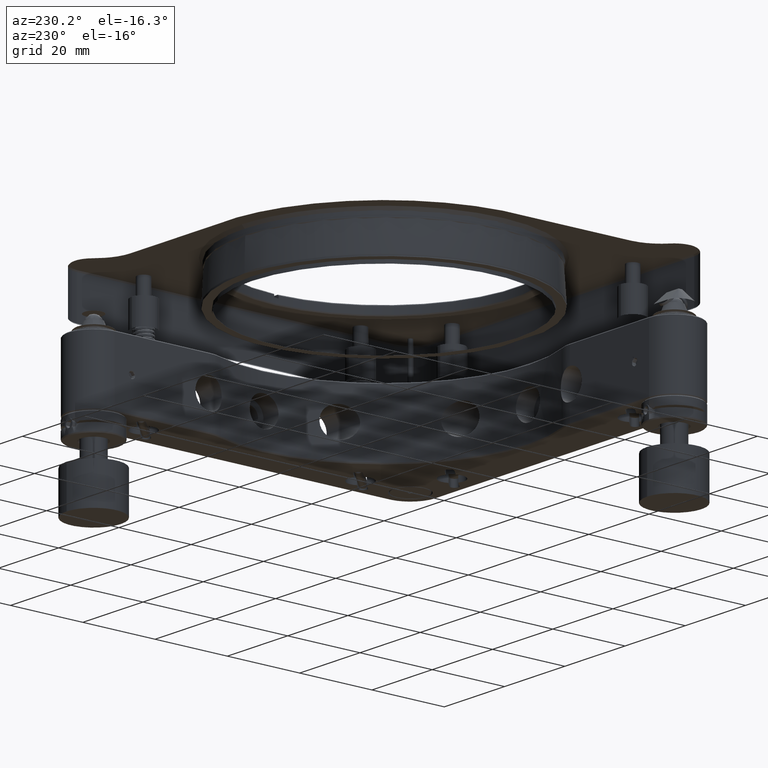
[diagram: clean part render]
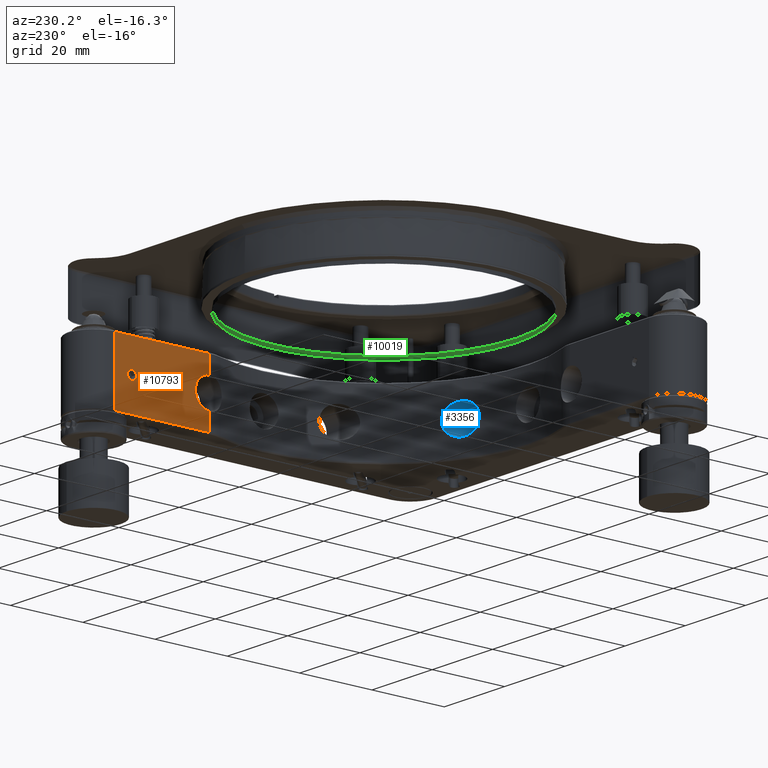
[diagram: same view with three faces highlighted in distinct colors, each labeled with its STEP entity id]
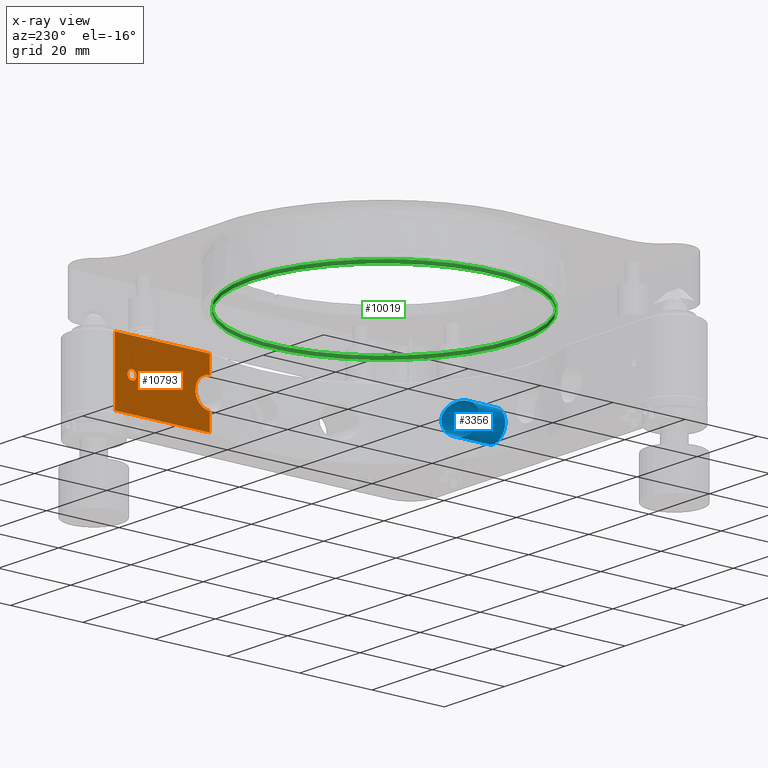
[diagram: x-ray of the same camera — body ghosted, the three highlighted faces saturated]
A machine part, auxiliary view with three faces highlighted in distinct colors.
The next image is the same camera in x-ray (body ghosted, the three faces saturated) — at least one of them is partly hidden behind the body in this view.
Their STEP definitions:

[orange] entity #10793 — the highlighted planar face has unit normal (1, -0, 0).
#72 = CARTESIAN_POINT ( 'NONE',  ( 36.80000000000001137, 37.87357851992529589, 0.4230013043515545301 ) ) ;
#140 = B_SPLINE_CURVE_WITH_KNOTS ( 'NONE', 3,
 ( #1087, #10561, #5021, #7658, #10229, #15431, #3738, #2447, #8940, #12865, #1168, #6376, #11596, #16188, #4246, #12261, #550, #15855, #10813, #296, #6871, #12007, #7045, #5514, #1749, #2952, #1497, #4331, #15940, #12088, #10977, #379, #16022, #5686 ),
 .UNSPECIFIED., .F., .F.,
 ( 4, 1, 1, 2, 2, 2, 1, 1, 2, 2, 2, 1, 1, 2, 2, 2, 1, 1, 2, 2, 4 ),
 ( 0.000000000000000000, 0.06249999999998979983, 0.09374999999998470668, 0.1093749999999821532, 0.1249999999999795997, 0.2499999999999779621, 0.3124999999999788503, 0.3437499999999792388, 0.3593749999999794054, 0.3749999999999795719, 0.4999999999999811262, 0.5624999999999819034, 0.5937499999999822364, 0.6093749999999824585, 0.6249999999999826805, 0.7499999999999824585, 0.8124999999999842348, 0.8437499999999850120, 0.8593749999999854561, 0.8749999999999859002, 1.000000000000000000 ),
 .UNSPECIFIED. ) ;
#149 = B_SPLINE_CURVE_WITH_KNOTS ( 'NONE', 3,
 ( #1447, #6656, #1201, #13149, #6406, #7856, #9049, #7604, #10422, #5137, #12983, #164, #1282, #5216, #11787, #13067, #1369, #2733, #5385, #14263, #16916, #72, #2558, #6569, #7772, #10593, #10261, #10341, #15628, #4108, #3937, #2397, #11873, #15717 ),
 .UNSPECIFIED., .F., .F.,
 ( 4, 1, 1, 2, 2, 2, 1, 1, 2, 2, 2, 1, 1, 2, 2, 2, 1, 1, 2, 2, 4 ),
 ( 0.000000000000000000, 0.06250000000001328104, 0.09375000000001994238, 0.1093750000000205946, 0.1250000000000212330, 0.2500000000000167644, 0.3125000000000145439, 0.3437500000000119904, 0.3593750000000118794, 0.3750000000000117129, 0.5000000000000069944, 0.5625000000000046629, 0.5937500000000033307, 0.6093750000000019984, 0.6250000000000006661, 0.7499999999999897859, 0.8124999999999862332, 0.8437499999999822364, 0.8593749999999824585, 0.8749999999999826805, 1.000000000000000000 ),
 .UNSPECIFIED. ) ;
#164 = CARTESIAN_POINT ( 'NONE',  ( 36.80000000000000426, 37.94988067785406116, -0.5965246171928245689 ) ) ;
#296 = CARTESIAN_POINT ( 'NONE',  ( 36.80000000000000426, 40.25707606986694032, -0.3293503164293616892 ) ) ;
#379 = CARTESIAN_POINT ( 'NONE',  ( 36.79999999999999716, 39.36250397191175665, -1.220745125442666446 ) ) ;
#456 = DIRECTION ( 'NONE',  ( 0.000000000000000000, 0.000000000000000000, -1.000000000000000000 ) ) ;
#550 = CARTESIAN_POINT ( 'NONE',  ( 36.80000000000001137, 40.29993269809825307, 0.1586042252453790380 ) ) ;
#568 = EDGE_CURVE ( 'NONE', #12319, #14961, #149, .T. ) ;
#636 = LINE ( 'NONE', #3042, #9140 ) ;
#715 = EDGE_CURVE ( 'NONE', #15132, #8281, #12209, .T. ) ;
#992 = VERTEX_POINT ( 'NONE', #6492 ) ;
#1087 = CARTESIAN_POINT ( 'NONE',  ( 36.80000000000000426, 39.05000000000001137, 1.249999999999987121 ) ) ;
#1151 = FACE_OUTER_BOUND ( 'NONE', #9335, .T. ) ;
#1168 = CARTESIAN_POINT ( 'NONE',  ( 36.80000000000001137, 40.07528999022573402, 0.7243921280173486466 ) ) ;
#1201 = CARTESIAN_POINT ( 'NONE',  ( 36.80000000000000426, 38.85355757384363784, -1.239029422040992756 ) ) ;
#1282 = CARTESIAN_POINT ( 'NONE',  ( 36.80000000000001137, 37.92189737487561274, -0.5389796670274261681 ) ) ;
#1294 = EDGE_CURVE ( 'NONE', #7166, #992, #15105, .T. ) ;
#1369 = CARTESIAN_POINT ( 'NONE',  ( 36.80000000000001137, 37.80006730190072517, -0.1586042252482678105 ) ) ;
#1439 = DIRECTION ( 'NONE',  ( 0.000000000000000000, 0.000000000000000000, 1.000000000000000000 ) ) ;
#1447 = CARTESIAN_POINT ( 'NONE',  ( 36.80000000000000426, 39.05000000000001137, -1.249999999999987121 ) ) ;
#1497 = CARTESIAN_POINT ( 'NONE',  ( 36.80000000000000426, 39.77439212801638746, -1.025289990225950909 ) ) ;
#1617 = CARTESIAN_POINT ( 'NONE',  ( 36.80000000000000426, 50.80000000000000426, -8.750000000000012434 ) ) ;
#1749 = CARTESIAN_POINT ( 'NONE',  ( 36.80000000000000426, 40.05562143336939585, -0.7620405893264134978 ) ) ;
#2397 = CARTESIAN_POINT ( 'NONE',  ( 36.79999999999999716, 38.73749602808892689, 1.220745125442666446 ) ) ;
#2447 = CARTESIAN_POINT ( 'NONE',  ( 36.80000000000001137, 39.67028855197811055, 1.098901979468707157 ) ) ;
#2558 = CARTESIAN_POINT ( 'NONE',  ( 36.80000000000000426, 37.87984794906397923, 0.4400971163233313721 ) ) ;
#2733 = CARTESIAN_POINT ( 'NONE',  ( 36.80000000000001137, 37.79996634904967578, 0.07930211262413383588 ) ) ;
#2952 = CARTESIAN_POINT ( 'NONE',  ( 36.79999999999999716, 39.87301449804008513, -0.9448049200615576959 ) ) ;
#2988 = VECTOR ( 'NONE', #6459, 1000.000000000000000 ) ;
#3030 = DIRECTION ( 'NONE',  ( 1.000000000000000000, -0.000000000000000000, 0.000000000000000000 ) ) ;
#3042 = CARTESIAN_POINT ( 'NONE',  ( 36.80000000000001137, 17.59999999999999076, -9.000000000000001776 ) ) ;
#3101 = VECTOR ( 'NONE', #14845, 1000.000000000000000 ) ;
#3336 = ORIENTED_EDGE ( 'NONE', *, *, #568, .F. ) ;
#3420 = DIRECTION ( 'NONE',  ( -0.000000000000000000, -1.000000000000000000, 0.000000000000000000 ) ) ;
#3738 = CARTESIAN_POINT ( 'NONE',  ( 36.80000000000001137, 39.49009711632412944, 1.170152050935440169 ) ) ;
#3937 = CARTESIAN_POINT ( 'NONE',  ( 36.80000000000000426, 38.57142981116751912, 1.154921657688695591 ) ) ;
#4108 = CARTESIAN_POINT ( 'NONE',  ( 36.80000000000001137, 38.54999354161282099, 1.145850069176516106 ) ) ;
#4246 = CARTESIAN_POINT ( 'NONE',  ( 36.80000000000000426, 40.20493010742312379, 0.4785488709730882362 ) ) ;
#4331 = CARTESIAN_POINT ( 'NONE',  ( 36.80000000000001137, 39.64652461719378351, -1.100119322145508560 ) ) ;
#4649 = DIRECTION ( 'NONE',  ( 0.000000000000000000, 0.000000000000000000, -1.000000000000000000 ) ) ;
#4838 = EDGE_CURVE ( 'NONE', #15402, #15132, #11136, .T. ) ;
#4882 = CARTESIAN_POINT ( 'NONE',  ( 36.80000000000000426, 17.59999999999999076, -3.998749804626435367 ) ) ;
#4905 = CARTESIAN_POINT ( 'NONE',  ( 36.80000000000000426, 39.05000000000001137, 1.249999999999987121 ) ) ;
#5021 = CARTESIAN_POINT ( 'NONE',  ( 36.80000000000000426, 39.24644242615450196, 1.239029422040991646 ) ) ;
#5137 = CARTESIAN_POINT ( 'NONE',  ( 36.80000000000001847, 38.10519507993814159, -0.8230144980393349075 ) ) ;
#5216 = CARTESIAN_POINT ( 'NONE',  ( 36.80000000000001137, 37.90414993082358563, -0.5000064583872859680 ) ) ;
#5385 = CARTESIAN_POINT ( 'NONE',  ( 36.79999999999999716, 37.81091168879590469, 0.1962934954612754468 ) ) ;
#5514 = CARTESIAN_POINT ( 'NONE',  ( 36.79999999999999716, 40.14890197946482431, -0.6202885519828190697 ) ) ;
#5538 = CARTESIAN_POINT ( 'NONE',  ( 36.80000000000000426, 17.50000000000001421, 2.143131898507868248E-15 ) ) ;
#5686 = CARTESIAN_POINT ( 'NONE',  ( 36.80000000000000426, 39.05000000000001137, -1.249999999999987121 ) ) ;
#5903 = EDGE_CURVE ( 'NONE', #14961, #12319, #140, .T. ) ;
#6329 = ORIENTED_EDGE ( 'NONE', *, *, #715, .F. ) ;
#6376 = CARTESIAN_POINT ( 'NONE',  ( 36.80000000000000426, 40.15011932214533630, 0.5965246171945138842 ) ) ;
#6406 = CARTESIAN_POINT ( 'NONE',  ( 36.80000000000001137, 38.66428919564076239, -1.189204713810555480 ) ) ;
#6450 = AXIS2_PLACEMENT_3D ( 'NONE', #13360, #3030, #456 ) ;
#6452 = ORIENTED_EDGE ( 'NONE', *, *, #16261, .F. ) ;
#6459 = DIRECTION ( 'NONE',  ( -0.000000000000000000, -0.000000000000000000, 1.000000000000000000 ) ) ;
#6492 = CARTESIAN_POINT ( 'NONE',  ( 36.80000000000000426, 17.59999999999998366, 8.749999999999996447 ) ) ;
#6569 = CARTESIAN_POINT ( 'NONE',  ( 36.79999999999999005, 37.95109802053590897, 0.6202885519843837070 ) ) ;
#6656 = CARTESIAN_POINT ( 'NONE',  ( 36.79999999999999716, 38.97061278412153484, -1.249999999999987121 ) ) ;
#6787 = EDGE_CURVE ( 'NONE', #992, #9417, #636, .T. ) ;
#6865 = EDGE_LOOP ( 'NONE', ( #3336, #9570 ) ) ;
#6871 = CARTESIAN_POINT ( 'NONE',  ( 36.80000000000000426, 40.23923310680036280, -0.3856389984871692600 ) ) ;
#7033 = CARTESIAN_POINT ( 'NONE',  ( 36.80000000000698179, 43.80000000000000426, 8.750000000005115908 ) ) ;
#7045 = CARTESIAN_POINT ( 'NONE',  ( 36.80000000000001137, 40.22015205093592272, -0.4400971163235249395 ) ) ;
#7166 = VERTEX_POINT ( 'NONE', #7033 ) ;
#7604 = CARTESIAN_POINT ( 'NONE',  ( 36.80000000000001137, 38.42971144801762762, -1.098901979466097245 ) ) ;
#7658 = CARTESIAN_POINT ( 'NONE',  ( 36.80000000000000426, 39.37946201445117822, 1.207031902993922712 ) ) ;
#7772 = CARTESIAN_POINT ( 'NONE',  ( 36.80000000000001847, 38.04437856662875106, 0.7620405893253864305 ) ) ;
#7856 = CARTESIAN_POINT ( 'NONE',  ( 36.79999999999999716, 38.62695880349794919, -1.176405706191727685 ) ) ;
#7996 = CARTESIAN_POINT ( 'NONE',  ( 36.80000000000000426, 43.80000000000000426, -9.000000000000001776 ) ) ;
#8152 = PLANE ( 'NONE',  #6450 ) ;
#8247 = DIRECTION ( 'NONE',  ( -0.000000000000000000, -0.000000000000000000, -1.000000000000000000 ) ) ;
#8281 = VERTEX_POINT ( 'NONE', #11173 ) ;
#8940 = CARTESIAN_POINT ( 'NONE',  ( 36.80000000000000426, 39.81204058932669199, 1.005621433368286466 ) ) ;
#9049 = CARTESIAN_POINT ( 'NONE',  ( 36.80000000000000426, 38.60990288367642620, -1.170152050935768351 ) ) ;
#9140 = VECTOR ( 'NONE', #8247, 1000.000000000000000 ) ;
#9335 = EDGE_LOOP ( 'NONE', ( #14271, #6452, #6329, #16707, #15851, #13110 ) ) ;
#9417 = VERTEX_POINT ( 'NONE', #13193 ) ;
#9570 = ORIENTED_EDGE ( 'NONE', *, *, #5903, .F. ) ;
#9659 = VECTOR ( 'NONE', #3420, 1000.000000000000000 ) ;
#9820 = CARTESIAN_POINT ( 'NONE',  ( 36.80000000000000426, 50.80000000000000426, 8.749999999999998224 ) ) ;
#10229 = CARTESIAN_POINT ( 'NONE',  ( 36.80000000000001847, 39.43571080435835796, 1.189204713810553926 ) ) ;
#10261 = CARTESIAN_POINT ( 'NONE',  ( 36.80000000000001137, 38.32560787198524110, 1.025289990226847747 ) ) ;
#10341 = CARTESIAN_POINT ( 'NONE',  ( 36.80000000000000426, 38.45347538280743294, 1.100119322146186018 ) ) ;
#10358 = CARTESIAN_POINT ( 'NONE',  ( 36.80000000000000426, 17.59999999999999076, -8.750000000000010658 ) ) ;
#10422 = CARTESIAN_POINT ( 'NONE',  ( 36.80000000000001137, 38.28795941067423314, -1.005621433370858631 ) ) ;
#10561 = CARTESIAN_POINT ( 'NONE',  ( 36.79999999999999716, 39.12938721587741497, 1.249999999999987121 ) ) ;
#10593 = CARTESIAN_POINT ( 'NONE',  ( 36.79999999999999716, 38.22698550196086131, 0.9448049200620709520 ) ) ;
#10793 = ADVANCED_FACE ( 'NONE', ( #1151, #11581 ), #8152, .F. ) ;
#10813 = CARTESIAN_POINT ( 'NONE',  ( 36.80000000000001137, 40.28908831120502043, -0.1962934954587493841 ) ) ;
#10977 = CARTESIAN_POINT ( 'NONE',  ( 36.80000000000001847, 39.52857018883242546, -1.154921657688695813 ) ) ;
#11136 = LINE ( 'NONE', #16344, #16743 ) ;
#11173 = CARTESIAN_POINT ( 'NONE',  ( 36.80000000000000426, 43.80000000000000426, -8.750000000000014211 ) ) ;
#11581 = FACE_BOUND ( 'NONE', #6865, .T. ) ;
#11596 = CARTESIAN_POINT ( 'NONE',  ( 36.79999999999999716, 40.17810262512401920, 0.5389796670285101898 ) ) ;
#11787 = CARTESIAN_POINT ( 'NONE',  ( 36.80000000000001137, 37.89506989257702685, -0.4785488709733837775 ) ) ;
#11845 = LINE ( 'NONE', #7996, #2988 ) ;
#11873 = CARTESIAN_POINT ( 'NONE',  ( 36.80000000000000426, 38.89086882373970866, 1.249999999999987121 ) ) ;
#11953 = DIRECTION ( 'NONE',  ( -1.000000000000000000, -0.000000000000000000, -0.000000000000000000 ) ) ;
#12007 = CARTESIAN_POINT ( 'NONE',  ( 36.80000000000001137, 40.22642148007494001, -0.4230013043508763504 ) ) ;
#12088 = CARTESIAN_POINT ( 'NONE',  ( 36.80000000000001847, 39.55000645838764939, -1.145850069176275854 ) ) ;
#12209 = LINE ( 'NONE', #1617, #3101 ) ;
#12261 = CARTESIAN_POINT ( 'NONE',  ( 36.80000000000000426, 40.27067752756732233, 0.3126745147863291829 ) ) ;
#12319 = VERTEX_POINT ( 'NONE', #16898 ) ;
#12865 = CARTESIAN_POINT ( 'NONE',  ( 36.79999999999999716, 39.99480492006144061, 0.8230144980406205457 ) ) ;
#12983 = CARTESIAN_POINT ( 'NONE',  ( 36.79999999999999716, 38.02471000977350002, -0.7243921280150995567 ) ) ;
#13067 = CARTESIAN_POINT ( 'NONE',  ( 36.79999999999999716, 37.82932247243164170, -0.3126745147839651295 ) ) ;
#13110 = ORIENTED_EDGE ( 'NONE', *, *, #6787, .F. ) ;
#13149 = CARTESIAN_POINT ( 'NONE',  ( 36.80000000000000426, 38.72053798554744475, -1.207031902993923600 ) ) ;
#13193 = CARTESIAN_POINT ( 'NONE',  ( 36.80000000000001137, 17.59999999999999076, 3.998749804626437587 ) ) ;
#13360 = CARTESIAN_POINT ( 'NONE',  ( 36.80000000000000426, 50.80000000000000426, -9.000000000000001776 ) ) ;
#14263 = CARTESIAN_POINT ( 'NONE',  ( 36.80000000000000426, 37.84292393013374323, 0.3293503164312571729 ) ) ;
#14271 = ORIENTED_EDGE ( 'NONE', *, *, #1294, .F. ) ;
#14444 = CIRCLE ( 'NONE', #16901, 3.999999999999994671 ) ;
#14845 = DIRECTION ( 'NONE',  ( 0.000000000000000000, 1.000000000000000000, 0.000000000000000000 ) ) ;
#14961 = VERTEX_POINT ( 'NONE', #4905 ) ;
#15105 = LINE ( 'NONE', #9820, #9659 ) ;
#15132 = VERTEX_POINT ( 'NONE', #10358 ) ;
#15402 = VERTEX_POINT ( 'NONE', #4882 ) ;
#15431 = CARTESIAN_POINT ( 'NONE',  ( 36.80000000000001847, 39.47304119650155485, 1.176405706191726352 ) ) ;
#15628 = CARTESIAN_POINT ( 'NONE',  ( 36.80000000000000426, 38.51102033297275540, 1.128102625124561387 ) ) ;
#15717 = CARTESIAN_POINT ( 'NONE',  ( 36.80000000000000426, 39.05000000000001137, 1.249999999999987121 ) ) ;
#15790 = EDGE_CURVE ( 'NONE', #9417, #15402, #14444, .T. ) ;
#15851 = ORIENTED_EDGE ( 'NONE', *, *, #15790, .F. ) ;
#15855 = CARTESIAN_POINT ( 'NONE',  ( 36.80000000000000426, 40.30003365095087986, -0.07930211262268954675 ) ) ;
#15940 = CARTESIAN_POINT ( 'NONE',  ( 36.80000000000001137, 39.58897966702806315, -1.128102625124129066 ) ) ;
#16022 = CARTESIAN_POINT ( 'NONE',  ( 36.80000000000000426, 39.20913117626098199, -1.249999999999987121 ) ) ;
#16188 = CARTESIAN_POINT ( 'NONE',  ( 36.80000000000000426, 40.19585006917622394, 0.5000064583878878199 ) ) ;
#16261 = EDGE_CURVE ( 'NONE', #8281, #7166, #11845, .T. ) ;
#16344 = CARTESIAN_POINT ( 'NONE',  ( 36.80000000000000426, 17.59999999999999076, -9.000000000000001776 ) ) ;
#16707 = ORIENTED_EDGE ( 'NONE', *, *, #4838, .F. ) ;
#16743 = VECTOR ( 'NONE', #4649, 1000.000000000000000 ) ;
#16898 = CARTESIAN_POINT ( 'NONE',  ( 36.80000000000000426, 39.05000000000001137, -1.249999999999987121 ) ) ;
#16901 = AXIS2_PLACEMENT_3D ( 'NONE', #5538, #11953, #1439 ) ;
#16916 = CARTESIAN_POINT ( 'NONE',  ( 36.80000000000001137, 37.86076689320008626, 0.3856389984883888400 ) ) ;

[blue] entity #3356 — the highlighted cylindrical surface (bore or boss wall) has radius 4 mm, axis along (0, 1, 0).
#594 = CARTESIAN_POINT ( 'NONE',  ( 13.49563487544978990, -37.65458627938710379, -0.2027371142948291849 ) ) ;
#766 = CARTESIAN_POINT ( 'NONE',  ( 13.98237661210883331, -37.47676783253960764, 1.923929985853091607 ) ) ;
#936 = CARTESIAN_POINT ( 'NONE',  ( 18.85775354456502839, -35.27680065668296550, 3.770728618600924786 ) ) ;
#1276 = CARTESIAN_POINT ( 'NONE',  ( 20.41183855940359848, -34.40064097931813336, -2.754414858204996985 ) ) ;
#1963 = CARTESIAN_POINT ( 'NONE',  ( 17.24905818533173374, -36.09082805755732437, -3.999999999999992450 ) ) ;
#2052 = CARTESIAN_POINT ( 'NONE',  ( 14.35184466892037847, -37.33699323100682221, -2.482276187145171065 ) ) ;
#2137 = CARTESIAN_POINT ( 'NONE',  ( 14.04742182256496363, -37.45258935069768569, -2.037714647975118254 ) ) ;
#2221 = CARTESIAN_POINT ( 'NONE',  ( 20.58470485839006514, -34.29726017907488256, -2.559833878587145950 ) ) ;
#2471 = CARTESIAN_POINT ( 'NONE',  ( 17.49999999999999645, -35.96873642484539602, -3.999999999999993339 ) ) ;
#2995 = VERTEX_POINT ( 'NONE', #8205 ) ;
#3176 = CARTESIAN_POINT ( 'NONE',  ( 14.90793570074804819, -37.11867493712535548, -3.058202152720484346 ) ) ;
#3342 = CARTESIAN_POINT ( 'NONE',  ( 15.23371283999772352, -36.98638824822577220, 3.306318507508646753 ) ) ;
#3356 = ADVANCED_FACE ( 'NONE', ( #8110, #8025 ), #10845, .F. ) ;
#3595 = CARTESIAN_POINT ( 'NONE',  ( 17.75094181466825916, -35.84664479213346766, -3.999999999999993339 ) ) ;
#3761 = CARTESIAN_POINT ( 'NONE',  ( 21.08164959215999801, -33.99366944589916528, 1.785894821257615339 ) ) ;
#3931 = CARTESIAN_POINT ( 'NONE',  ( 20.03674698116396868, -34.62045672107625904, -3.103307873976667963 ) ) ;
#4092 = ORIENTED_EDGE ( 'NONE', *, *, #6555, .F. ) ;
#4189 = DIRECTION ( 'NONE',  ( 0.000000000000000000, 1.000000000000000000, 0.000000000000000000 ) ) ;
#4462 = CARTESIAN_POINT ( 'NONE',  ( 15.78288450682069666, -36.75552985995759059, -3.621882069839563734 ) ) ;
#4524 = DIRECTION ( 'NONE',  ( 0.000000000000000000, 0.000000000000000000, 1.000000000000000000 ) ) ;
#4879 = CARTESIAN_POINT ( 'NONE',  ( 20.89125798846622217, -34.11139794200070696, -2.137176362634068294 ) ) ;
#5038 = CIRCLE ( 'NONE', #14576, 3.999999999999994671 ) ;
#5045 = CARTESIAN_POINT ( 'NONE',  ( 17.39832424904881947, -36.01909807150074982, 4.006475940607523434 ) ) ;
#5062 = EDGE_CURVE ( 'NONE', #16146, #16146, #8250, .T. ) ;
#5131 = CARTESIAN_POINT ( 'NONE',  ( 18.72558998606441349, -35.34714844206472151, -3.815661290487571300 ) ) ;
#5210 = CARTESIAN_POINT ( 'NONE',  ( 18.14113008220473588, -35.65069874446366072, 3.955933271353841540 ) ) ;
#5737 = CARTESIAN_POINT ( 'NONE',  ( 17.00035470604656496, -36.20858398071924711, -3.976586675342641097 ) ) ;
#5815 = CARTESIAN_POINT ( 'NONE',  ( 14.12343853441931074, -37.42402756860685287, 2.161321848127597978 ) ) ;
#5902 = CARTESIAN_POINT ( 'NONE',  ( 13.70340416733485611, -37.57963995898582965, -1.288705830220908455 ) ) ;
#6065 = CARTESIAN_POINT ( 'NONE',  ( 13.62401709950764861, -37.60836670154260730, -1.026458071714603459 ) ) ;
#6555 = EDGE_CURVE ( 'NONE', #2995, #2995, #5038, .T. ) ;
#6619 = ORIENTED_EDGE ( 'NONE', *, *, #5062, .T. ) ;
#7093 = CARTESIAN_POINT ( 'NONE',  ( 14.52420026753195081, -37.27050016479843464, -2.686263890723278536 ) ) ;
#7257 = CARTESIAN_POINT ( 'NONE',  ( 15.68147749479099140, -36.79877968248905518, 3.572222762193551393 ) ) ;
#7340 = CARTESIAN_POINT ( 'NONE',  ( 13.53977798531945709, -37.63879339935400736, 0.6271149066583883158 ) ) ;
#7423 = CARTESIAN_POINT ( 'NONE',  ( 17.14460611040788152, -36.14053612821834349, 3.992178603606768572 ) ) ;
#7487 = CARTESIAN_POINT ( 'NONE',  ( 17.49999999999999645, -35.96873642484539602, -3.999999999999993339 ) ) ;
#7681 = CARTESIAN_POINT ( 'NONE',  ( 21.14025744816766661, -33.95722720875544809, 1.663379319573768722 ) ) ;
#8025 = FACE_OUTER_BOUND ( 'NONE', #16257, .T. ) ;
#8110 = FACE_OUTER_BOUND ( 'NONE', #9251, .T. ) ;
#8205 = CARTESIAN_POINT ( 'NONE',  ( 17.50000000000000000, -44.80000000000000426, 3.999999999999996447 ) ) ;
#8250 = B_SPLINE_CURVE_WITH_KNOTS ( 'NONE', 3,
 ( #13673, #1963, #5737, #11112, #10944, #4462, #14863, #9663, #3176, #7093, #2052, #2137, #12388, #5902, #6065, #12306, #594, #13755, #7340, #16322, #11196, #766, #5815, #12554, #9828, #11279, #3342, #7257, #16402, #9911, #15367, #7423, #5045, #11454, #5210, #11702, #936, #11533, #8793, #10416, #10086, #14256, #16909, #8880, #16748, #3761, #7681, #14178, #11619, #8963, #9042, #13925, #16830, #15456, #15285, #14092, #4879, #2221, #1276, #3931, #15620, #16661, #10251, #5131, #16579, #14008, #3595, #2471 ),
 .UNSPECIFIED., .T., .F.,
 ( 4, 2, 2, 2, 2, 2, 2, 2, 2, 2, 2, 2, 2, 2, 2, 2, 2, 2, 2, 2, 2, 2, 2, 2, 2, 2, 2, 2, 2, 2, 2, 2, 2, 4 ),
 ( 0.000000000000000000, 0.0008259373620780255517, 0.001651874724156051103, 0.002477812086234076547, 0.003303749448312102207, 0.004129686810390127867, 0.004955624172468153094, 0.005781561534546178320, 0.006607498896624204414, 0.007433436258702229640, 0.008259373620780255734, 0.009085310982858280093, 0.009911248344936306187, 0.01073718570701433228, 0.01156312306909236184, 0.01238906043117039141, 0.01321499779324842271, 0.01404093515532645574, 0.01486687251740448530, 0.01569280987948251660, 0.01651874724156054963, 0.01734468460363858267, 0.01775765328467759224, 0.01817062196571660529, 0.01899655932779462444, 0.01982249668987264013, 0.02064843405195065582, 0.02147437141402867150, 0.02230030877610669066, 0.02312624613818470634, 0.02395218350026272203, 0.02477812086234073771, 0.02560405822441875340, 0.02642999558649676908 ),
 .UNSPECIFIED. ) ;
#8793 = CARTESIAN_POINT ( 'NONE',  ( 19.53178948871648757, -34.90795760438342654, 3.454539118071655146 ) ) ;
#8880 = CARTESIAN_POINT ( 'NONE',  ( 20.88722103118776374, -34.11350541786101331, 2.131575444473116310 ) ) ;
#8963 = CARTESIAN_POINT ( 'NONE',  ( 21.47897920634291680, -33.74399581330995090, 0.4925274602777307553 ) ) ;
#9042 = CARTESIAN_POINT ( 'NONE',  ( 21.50403600742033561, -33.72797748096742509, 0.2103933553034330883 ) ) ;
#9223 = DIRECTION ( 'NONE',  ( 0.000000000000000000, 0.000000000000000000, 1.000000000000000000 ) ) ;
#9251 = EDGE_LOOP ( 'NONE', ( #6619 ) ) ;
#9663 = CARTESIAN_POINT ( 'NONE',  ( 15.11723723913955020, -37.03410554643190977, -3.223319965353208083 ) ) ;
#9828 = CARTESIAN_POINT ( 'NONE',  ( 14.62545106889875335, -37.23092479941778521, 2.794307684941880865 ) ) ;
#9911 = CARTESIAN_POINT ( 'NONE',  ( 16.40003775044506185, -36.48435091761927396, 3.854247027514543955 ) ) ;
#10086 = CARTESIAN_POINT ( 'NONE',  ( 20.14144750008922813, -34.55961036005319187, 3.014739335513816787 ) ) ;
#10251 = CARTESIAN_POINT ( 'NONE',  ( 19.18694179482388051, -35.09885878306579343, -3.635322444920547014 ) ) ;
#10416 = CARTESIAN_POINT ( 'NONE',  ( 19.94455912915243090, -34.67377778501656849, 3.175868339340210511 ) ) ;
#10675 = CARTESIAN_POINT ( 'NONE',  ( 17.50000000000000000, -31.80000000000000782, 2.143131898507868248E-15 ) ) ;
#10726 = AXIS2_PLACEMENT_3D ( 'NONE', #10675, #4189, #9223 ) ;
#10845 = CYLINDRICAL_SURFACE ( 'NONE', #10726, 3.999999999999994671 ) ;
#10944 = CARTESIAN_POINT ( 'NONE',  ( 16.26222061900661942, -36.54597924780004092, -3.812403119913917671 ) ) ;
#11112 = CARTESIAN_POINT ( 'NONE',  ( 16.50760913805645913, -36.43586769332319619, -3.883046147474094045 ) ) ;
#11196 = CARTESIAN_POINT ( 'NONE',  ( 13.75275037014438517, -37.56164054129447294, 1.425938673663970757 ) ) ;
#11279 = CARTESIAN_POINT ( 'NONE',  ( 15.02203848626843374, -37.07268455488115677, 3.151332056747707000 ) ) ;
#11454 = CARTESIAN_POINT ( 'NONE',  ( 17.89673302843028679, -35.77406965203316958, 3.988081032921842350 ) ) ;
#11533 = CARTESIAN_POINT ( 'NONE',  ( 19.31451452753941567, -35.02880331790355939, 3.573433367542109274 ) ) ;
#11619 = CARTESIAN_POINT ( 'NONE',  ( 21.37485506141940661, -33.81004839243068005, 1.029736411238001859 ) ) ;
#11702 = CARTESIAN_POINT ( 'NONE',  ( 18.62081044086144033, -35.40251883910919872, 3.847627812739704556 ) ) ;
#12306 = CARTESIAN_POINT ( 'NONE',  ( 13.51947222831579687, -37.64607494219251294, -0.4819318175301456342 ) ) ;
#12365 = CARTESIAN_POINT ( 'NONE',  ( 17.50000000000000000, -44.80000000000000426, 2.143131898507868248E-15 ) ) ;
#12388 = CARTESIAN_POINT ( 'NONE',  ( 13.91431242852449301, -37.50206040821946374, -1.793808036892957203 ) ) ;
#12554 = CARTESIAN_POINT ( 'NONE',  ( 14.44351565726462105, -37.30166498897493454, 2.594298156467685246 ) ) ;
#13673 = CARTESIAN_POINT ( 'NONE',  ( 17.49999999999999645, -35.96873642484539602, -3.999999999999993339 ) ) ;
#13755 = CARTESIAN_POINT ( 'NONE',  ( 13.50569656697122412, -37.65097859025931371, 0.3486867836916405228 ) ) ;
#13925 = CARTESIAN_POINT ( 'NONE',  ( 21.49486562504877796, -33.73382251281604738, -0.3429553184864149173 ) ) ;
#14008 = CARTESIAN_POINT ( 'NONE',  ( 18.00207211030254584, -35.72114426044707614, -3.976084596445493169 ) ) ;
#14092 = CARTESIAN_POINT ( 'NONE',  ( 21.02749021292802922, -34.02737064978645520, -1.905038820746356665 ) ) ;
#14178 = CARTESIAN_POINT ( 'NONE',  ( 21.29637138399068874, -33.85970502828602235, 1.288714287078445153 ) ) ;
#14256 = CARTESIAN_POINT ( 'NONE',  ( 20.50514264257233776, -34.34506807163596420, 2.652360430751305120 ) ) ;
#14576 = AXIS2_PLACEMENT_3D ( 'NONE', #12365, #16216, #4524 ) ;
#14863 = CARTESIAN_POINT ( 'NONE',  ( 15.55371577340248734, -36.85292065778366322, -3.504187164362889906 ) ) ;
#15285 = CARTESIAN_POINT ( 'NONE',  ( 21.25080024109098886, -33.88835769266458442, -1.415576794909204850 ) ) ;
#15367 = CARTESIAN_POINT ( 'NONE',  ( 16.64526612420897322, -36.37321797656006339, 3.915766185745818362 ) ) ;
#15456 = CARTESIAN_POINT ( 'NONE',  ( 21.33856628859422955, -33.83298546881822944, -1.158620547221476782 ) ) ;
#15620 = CARTESIAN_POINT ( 'NONE',  ( 19.83667819940080790, -34.73565029556269224, -3.256156525492143849 ) ) ;
#16146 = VERTEX_POINT ( 'NONE', #7487 ) ;
#16216 = DIRECTION ( 'NONE',  ( 0.000000000000000000, 1.000000000000000000, 0.000000000000000000 ) ) ;
#16257 = EDGE_LOOP ( 'NONE', ( #4092 ) ) ;
#16322 = CARTESIAN_POINT ( 'NONE',  ( 13.66391836354635281, -37.59390497680890064, 1.166665843408760006 ) ) ;
#16402 = CARTESIAN_POINT ( 'NONE',  ( 15.91911177574444736, -36.69674345725193376, 3.683195558473752129 ) ) ;
#16579 = CARTESIAN_POINT ( 'NONE',  ( 18.48867534167420246, -35.47173003463985452, -3.883792758477228713 ) ) ;
#16661 = CARTESIAN_POINT ( 'NONE',  ( 19.41263618087076992, -34.97440149525586151, -3.521994202960046838 ) ) ;
#16748 = CARTESIAN_POINT ( 'NONE',  ( 20.95531631426063512, -34.07169250408557559, 2.019510654098901181 ) ) ;
#16830 = CARTESIAN_POINT ( 'NONE',  ( 21.46177517455433659, -33.75496294388246099, -0.6175193848461311141 ) ) ;
#16909 = CARTESIAN_POINT ( 'NONE',  ( 20.66902379644699295, -34.24646656959524904, 2.454548621632597794 ) ) ;

[green] entity #10019 — the highlighted cylindrical surface (bore or boss wall) has radius 36.6 mm, axis along (0, -0, 1).
#503 = CARTESIAN_POINT ( 'NONE',  ( 1.387689922643660926E-14, 3.163224433378877729E-14, 12.99999999999999645 ) ) ;
#712 = ORIENTED_EDGE ( 'NONE', *, *, #4892, .F. ) ;
#907 = CARTESIAN_POINT ( 'NONE',  ( 1.387689922643660926E-14, -36.59999999999996589, 12.99999999999999112 ) ) ;
#1462 = DIRECTION ( 'NONE',  ( -1.137208903880104210E-16, 1.216571513026822848E-16, -1.000000000000000000 ) ) ;
#1876 = FACE_OUTER_BOUND ( 'NONE', #8222, .T. ) ;
#1996 = CIRCLE ( 'NONE', #16455, 36.60000000000000142 ) ;
#2908 = ORIENTED_EDGE ( 'NONE', *, *, #3212, .T. ) ;
#3166 = CYLINDRICAL_SURFACE ( 'NONE', #10542, 36.60000000000000142 ) ;
#3212 = EDGE_CURVE ( 'NONE', #12131, #12131, #1996, .T. ) ;
#4892 = EDGE_CURVE ( 'NONE', #12611, #12611, #11565, .T. ) ;
#6002 = EDGE_LOOP ( 'NONE', ( #2908 ) ) ;
#6369 = AXIS2_PLACEMENT_3D ( 'NONE', #13165, #1462, #13336 ) ;
#7312 = CARTESIAN_POINT ( 'NONE',  ( 1.399062011682462119E-14, -36.59999999999996589, 13.99999999999998934 ) ) ;
#8222 = EDGE_LOOP ( 'NONE', ( #712 ) ) ;
#10019 = ADVANCED_FACE ( 'NONE', ( #1876, #10852 ), #3166, .T. ) ;
#10542 = AXIS2_PLACEMENT_3D ( 'NONE', #503, #13494, #16060 ) ;
#10852 = FACE_OUTER_BOUND ( 'NONE', #6002, .T. ) ;
#11565 = CIRCLE ( 'NONE', #6369, 36.60000000000000142 ) ;
#12131 = VERTEX_POINT ( 'NONE', #7312 ) ;
#12611 = VERTEX_POINT ( 'NONE', #907 ) ;
#13165 = CARTESIAN_POINT ( 'NONE',  ( 1.387689922643660926E-14, 3.163224433378877729E-14, 12.99999999999999645 ) ) ;
#13336 = DIRECTION ( 'NONE',  ( 0.000000000000000000, -1.000000000000000000, -1.421904488505579408E-16 ) ) ;
#13494 = DIRECTION ( 'NONE',  ( 1.137208903880104210E-16, -1.216571513026822848E-16, 1.000000000000000000 ) ) ;
#14598 = CARTESIAN_POINT ( 'NONE',  ( 1.399062011682462119E-14, 3.151058718248609952E-14, 13.99999999999999467 ) ) ;
#15715 = DIRECTION ( 'NONE',  ( 0.000000000000000000, -1.000000000000000000, -1.421904488505579408E-16 ) ) ;
#15885 = DIRECTION ( 'NONE',  ( -1.137208903880104210E-16, 1.216571513026822848E-16, -1.000000000000000000 ) ) ;
#16060 = DIRECTION ( 'NONE',  ( 0.000000000000000000, -1.000000000000000000, -1.421904488505579408E-16 ) ) ;
#16455 = AXIS2_PLACEMENT_3D ( 'NONE', #14598, #15885, #15715 ) ;